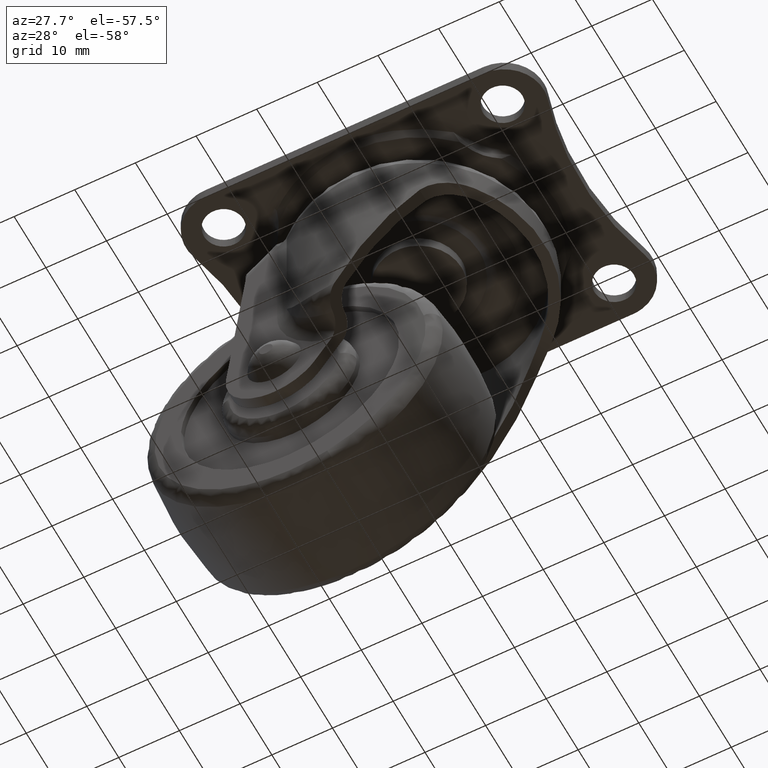
[diagram: clean part render]
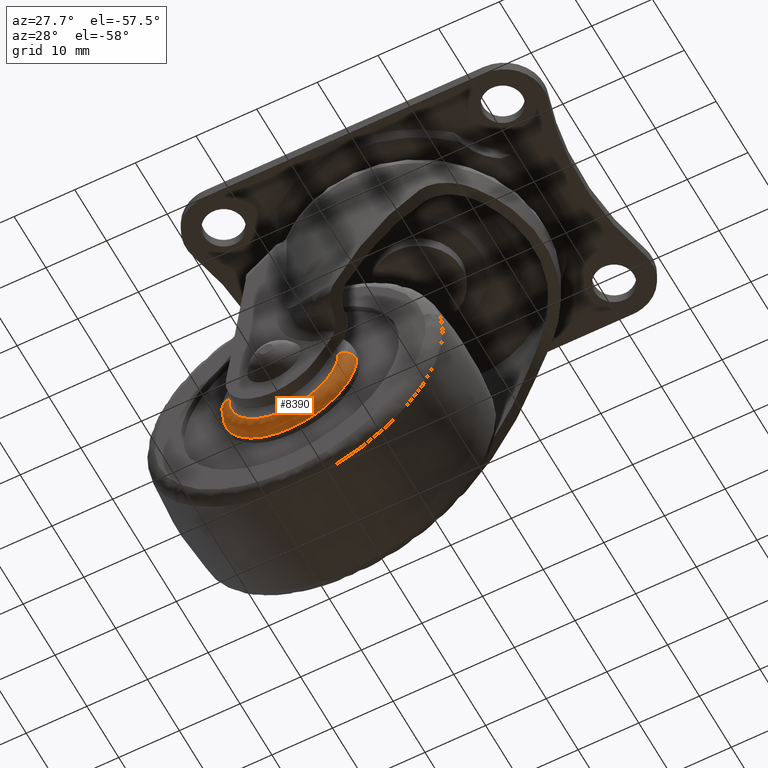
[diagram: same view with one face highlighted and labeled with its STEP entity id]
A machine part, auxiliary view. The second image highlights one B-rep face of the part: STEP entity #8390.
In plain terms, the highlighted face is a freeform B-spline surface patch.
Its self-contained STEP definition (entity closure, byte-faithful):
#7491=CARTESIAN_POINT('',(-10.029982518012471,-10.000000000092410,-49.238987567081708));
#7492=VERTEX_POINT('',#7491);
#7493=CARTESIAN_POINT('',(-5.000868513758641,-10.000000000569990,-40.138226438765869));
#7494=VERTEX_POINT('',#7493);
#7495=CARTESIAN_POINT('',(-10.029982518012467,-10.000000000092411,-49.238987567081715));
#7496=CARTESIAN_POINT('',(-5.075001035241105,-10.000000000260432,-46.037194524634906));
#7497=CARTESIAN_POINT('',(-5.000868513758641,-10.000000000569994,-40.138226438765869));
#7505=(BOUNDED_CURVE()B_SPLINE_CURVE(2,(#7495,#7496,#7497),.UNSPECIFIED.,.F.,.U.)B_SPLINE_CURVE_WITH_KNOTS((3,3),(0.092934743116013,0.247784295920161),.UNSPECIFIED.)CURVE()GEOMETRIC_REPRESENTATION_ITEM()RATIONAL_B_SPLINE_CURVE((0.863190099536075,0.816652500423881,0.994854295640407))REPRESENTATION_ITEM(''));
#7506=EDGE_CURVE('',#7492,#7494,#7505,.T.);
#7549=CARTESIAN_POINT('',(-24.487873009690752,-10.000000000000060,-46.996857278189033));
#7550=VERTEX_POINT('',#7549);
#7556=CARTESIAN_POINT('',(-26.973222412243100,-10.000000000567480,-39.232934232646400));
#7557=VERTEX_POINT('',#7556);
#7558=CARTESIAN_POINT('',(-26.973222412243107,-10.000000000567479,-39.232934232646400));
#7559=CARTESIAN_POINT('',(-26.999999999999996,-9.999999999999998,-39.615999725354349));
#7560=CARTESIAN_POINT('',(-27.0,-10.0,-40.0));
#7561=CARTESIAN_POINT('',(-27.000000000000007,-10.0,-43.949401251835418));
#7562=CARTESIAN_POINT('',(-24.487873009690755,-10.000000000000064,-46.996857278189026));
#7570=(BOUNDED_CURVE()B_SPLINE_CURVE(2,(#7558,#7559,#7560,#7561,#7562),.UNSPECIFIED.,.F.,.U.)B_SPLINE_CURVE_WITH_KNOTS((3,2,3),(0.737833686534391,0.750000000000000,0.860504569824480),.UNSPECIFIED.)CURVE()GEOMETRIC_REPRESENTATION_ITEM()RATIONAL_B_SPLINE_CURVE((0.972879876385493,0.985746277151857,1.0,0.870535843402049,0.855522734264463))REPRESENTATION_ITEM(''));
#7571=EDGE_CURVE('',#7557,#7550,#7570,.T.);
#7620=CARTESIAN_POINT('',(-16.0,-10.0,-51.000000000000007));
#7621=VERTEX_POINT('',#7620);
#7622=CARTESIAN_POINT('',(-16.0,-10.0,-51.000000000000007));
#7623=CARTESIAN_POINT('',(-12.755262971930344,-10.0,-51.000000000000007));
#7624=CARTESIAN_POINT('',(-10.029982518012467,-10.000000000092411,-49.238987567081708));
#7632=(BOUNDED_CURVE()B_SPLINE_CURVE(2,(#7622,#7623,#7624),.UNSPECIFIED.,.F.,.U.)B_SPLINE_CURVE_WITH_KNOTS((3,3),(0.0,0.092934743116013),.UNSPECIFIED.)CURVE()GEOMETRIC_REPRESENTATION_ITEM()RATIONAL_B_SPLINE_CURVE((1.0,0.891120175796598,0.863190099536075))REPRESENTATION_ITEM(''));
#7633=EDGE_CURVE('',#7621,#7492,#7632,.T.);
#7635=CARTESIAN_POINT('',(-24.487873009690755,-10.000000000000064,-46.996857278189026));
#7636=CARTESIAN_POINT('',(-21.187939297588148,-10.0,-51.000000000000021));
#7637=CARTESIAN_POINT('',(-16.0,-10.0,-51.000000000000007));
#7645=(BOUNDED_CURVE()B_SPLINE_CURVE(2,(#7635,#7636,#7637),.UNSPECIFIED.,.F.,.U.)B_SPLINE_CURVE_WITH_KNOTS((3,3),(0.860504569824480,1.0),.UNSPECIFIED.)CURVE()GEOMETRIC_REPRESENTATION_ITEM()RATIONAL_B_SPLINE_CURVE((0.855522734264463,0.836570937784499,1.0))REPRESENTATION_ITEM(''));
#7646=EDGE_CURVE('',#7550,#7621,#7645,.T.);
#8295=CARTESIAN_POINT('',(-26.968392967841744,-9.860925739625280,-39.233272435644288));
#8296=CARTESIAN_POINT('',(-26.990336360150213,-9.860925739625280,-39.547182827126129));
#8297=CARTESIAN_POINT('',(-26.994290596535230,-9.860925739625282,-39.861834396899582));
#8298=CARTESIAN_POINT('',(-27.132456199635659,-9.860925739625282,-50.856124993434797));
#8299=CARTESIAN_POINT('',(-16.138165603100429,-9.860925739625282,-50.994290596535244));
#8300=CARTESIAN_POINT('',(-5.143875006565201,-9.860925739625282,-51.132456199635655));
#8301=CARTESIAN_POINT('',(-5.005709403464770,-9.860925739625282,-40.138165603100440));
#8302=CARTESIAN_POINT('',(-27.127919361402562,-12.155075380118975,-39.222121004113355));
#8303=CARTESIAN_POINT('',(-27.150181902582514,-12.155075380118975,-39.540596968036034));
#8304=CARTESIAN_POINT('',(-27.154193650133603,-12.155075380118971,-39.859824890088362));
#8305=CARTESIAN_POINT('',(-27.294368760045241,-12.155075380118969,-51.014018540221983));
#8306=CARTESIAN_POINT('',(-16.140175109911624,-12.155075380118971,-51.154193650133614));
#8307=CARTESIAN_POINT('',(-4.985981459778019,-12.155075380118969,-51.294368760045238));
#8308=CARTESIAN_POINT('',(-4.845806349866389,-12.155075380118971,-40.140175109911617));
#8309=CARTESIAN_POINT('',(-24.839354492529843,-11.995158665306965,-39.382099386810395));
#8310=CARTESIAN_POINT('',(-24.857038525546521,-11.995158665306963,-39.635077670623907));
#8311=CARTESIAN_POINT('',(-24.860225218187541,-11.995158665306970,-39.888653265062658));
#8312=CARTESIAN_POINT('',(-24.971571953124894,-11.995158665306965,-48.748878483250188));
#8313=CARTESIAN_POINT('',(-16.111346734937339,-11.995158665306970,-48.860225218187551));
#8314=CARTESIAN_POINT('',(-7.251121516749804,-11.995158665306965,-48.971571953124901));
#8315=CARTESIAN_POINT('',(-7.139774781812460,-11.995158665306970,-40.111346734937335));
#8323=(BOUNDED_SURFACE()B_SPLINE_SURFACE(2,2,((#8295,#8302,#8309),(#8296,#8303,#8310),(#8297,#8304,#8311),(#8298,#8305,#8312),(#8299,#8306,#8313),(#8300,#8307,#8314),(#8301,#8308,#8315)),.UNSPECIFIED.,.F.,.F.,.U.)B_SPLINE_SURFACE_WITH_KNOTS((3,2,2,3),(3,3),(0.0,0.728694323558577,18.946069785966099,37.163445248373627),(0.0,3.644749014791771),.UNSPECIFIED.)GEOMETRIC_REPRESENTATION_ITEM()RATIONAL_B_SPLINE_SURFACE(((0.889999308491947,0.584039666282875,0.889999491412450),(0.899812879610098,0.590479575557186,0.899813064547572),(0.910479803853933,0.597479476361818,0.910479990983768),(0.643806443438514,0.422481789355229,0.643806575759289),(0.910479803853933,0.597479476361818,0.910479990983768),(0.643806443438514,0.422481789355229,0.643806575759289),(0.910479803853933,0.597479476361818,0.910479990983768)))REPRESENTATION_ITEM('')SURFACE());
#8324=ORIENTED_EDGE('',*,*,#7571,.T.);
#8325=ORIENTED_EDGE('',*,*,#7646,.T.);
#8326=ORIENTED_EDGE('',*,*,#7633,.T.);
#8327=ORIENTED_EDGE('',*,*,#7506,.T.);
#8328=CARTESIAN_POINT('',(-7.000710600066720,-12.0,-40.113094359161359));
#8329=VERTEX_POINT('',#8328);
#8330=CARTESIAN_POINT('',(-5.000868513758641,-10.000000000569994,-40.138226438765869));
#8331=CARTESIAN_POINT('',(-5.000868514897926,-11.999999995797150,-40.138226438702553));
#8332=CARTESIAN_POINT('',(-7.000710600066721,-11.999999999999998,-40.113094359161352));
#8340=(BOUNDED_CURVE()B_SPLINE_CURVE(2,(#8330,#8331,#8332),.UNSPECIFIED.,.F.,.U.)B_SPLINE_CURVE_WITH_KNOTS((3,3),(-1.725134642697287,-0.274865358873187),.UNSPECIFIED.)CURVE()GEOMETRIC_REPRESENTATION_ITEM()RATIONAL_B_SPLINE_CURVE((0.883342149444503,0.624617224616306,0.883342148884164))REPRESENTATION_ITEM(''));
#8341=EDGE_CURVE('',#7494,#8329,#8340,.T.);
#8342=ORIENTED_EDGE('',*,*,#8341,.T.);
#8343=CARTESIAN_POINT('',(-16.0,-12.0,-49.0));
#8344=VERTEX_POINT('',#8343);
#8345=CARTESIAN_POINT('',(-16.0,-12.0,-49.0));
#8346=CARTESIAN_POINT('',(-7.112392631199159,-12.0,-48.999999999999993));
#8347=CARTESIAN_POINT('',(-7.000710600066720,-12.000000000000002,-40.113094359161359));
#8355=(BOUNDED_CURVE()B_SPLINE_CURVE(2,(#8345,#8346,#8347),.UNSPECIFIED.,.F.,.U.)B_SPLINE_CURVE_WITH_KNOTS((3,3),(0.0,0.247784295914506),.UNSPECIFIED.)CURVE()GEOMETRIC_REPRESENTATION_ITEM()RATIONAL_B_SPLINE_CURVE((1.0,0.709702639992701,0.994854295627391))REPRESENTATION_ITEM(''));
#8356=EDGE_CURVE('',#8344,#8329,#8355,.T.);
#8357=ORIENTED_EDGE('',*,*,#8356,.F.);
#8358=CARTESIAN_POINT('',(-24.978091067883259,-12.0,-39.372400735270652));
#8359=VERTEX_POINT('',#8358);
#8360=CARTESIAN_POINT('',(-24.978091067883266,-11.999999999999998,-39.372400735270645));
#8361=CARTESIAN_POINT('',(-25.0,-12.0,-39.685817956809643));
#8362=CARTESIAN_POINT('',(-25.0,-12.0,-40.0));
#8363=CARTESIAN_POINT('',(-25.000000000000004,-12.0,-48.999999999999986));
#8364=CARTESIAN_POINT('',(-16.0,-12.0,-49.0));
#8372=(BOUNDED_CURVE()B_SPLINE_CURVE(2,(#8360,#8361,#8362,#8363,#8364),.UNSPECIFIED.,.F.,.U.)B_SPLINE_CURVE_WITH_KNOTS((3,2,3),(0.737833686522998,0.750000000000000,1.0),.UNSPECIFIED.)CURVE()GEOMETRIC_REPRESENTATION_ITEM()RATIONAL_B_SPLINE_CURVE((0.972879876361396,0.985746277138509,1.0,0.707106781186547,1.0))REPRESENTATION_ITEM(''));
#8373=EDGE_CURVE('',#8359,#8344,#8372,.T.);
#8374=ORIENTED_EDGE('',*,*,#8373,.F.);
#8375=CARTESIAN_POINT('',(-26.973222412243096,-10.000000000567479,-39.232934232646400));
#8376=CARTESIAN_POINT('',(-26.973222411112562,-11.999999993300660,-39.232934232749272));
#8377=CARTESIAN_POINT('',(-24.978091067883270,-12.000000000000005,-39.372400735270638));
#8385=(BOUNDED_CURVE()B_SPLINE_CURVE(2,(#8375,#8376,#8377),.UNSPECIFIED.,.F.,.U.)B_SPLINE_CURVE_WITH_KNOTS((3,3),(-1.725134642699868,-0.274865360153255),.UNSPECIFIED.)CURVE()GEOMETRIC_REPRESENTATION_ITEM()RATIONAL_B_SPLINE_CURVE((0.863472075169737,0.610566960561767,0.863472074174654))REPRESENTATION_ITEM(''));
#8386=EDGE_CURVE('',#7557,#8359,#8385,.T.);
#8387=ORIENTED_EDGE('',*,*,#8386,.F.);
#8388=EDGE_LOOP('',(#8324,#8325,#8326,#8327,#8342,#8357,#8374,#8387));
#8389=FACE_OUTER_BOUND('',#8388,.T.);
#8390=ADVANCED_FACE('',(#8389),#8323,.T.);